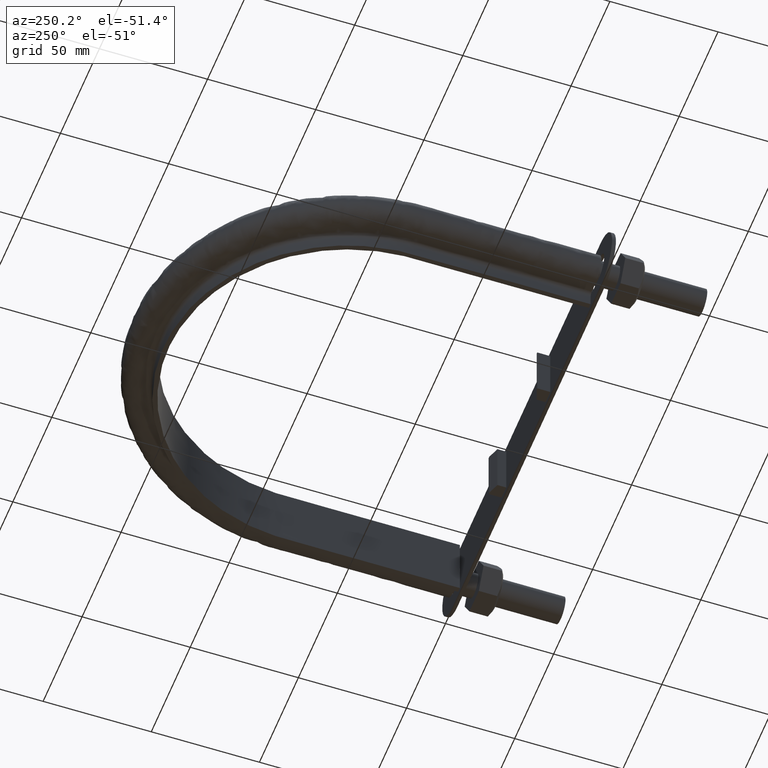
[diagram: clean part render]
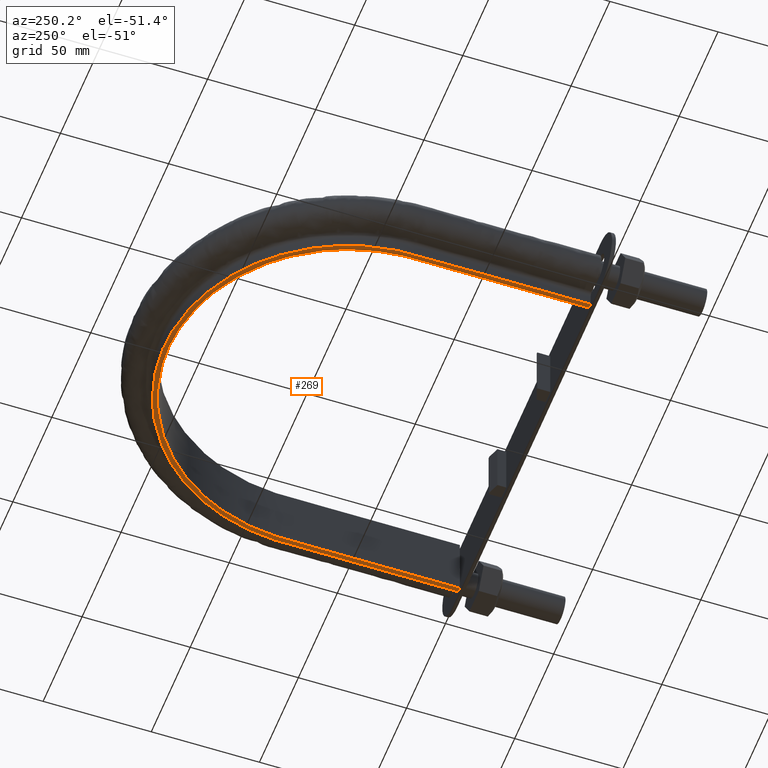
[diagram: same view with one face highlighted and labeled with its STEP entity id]
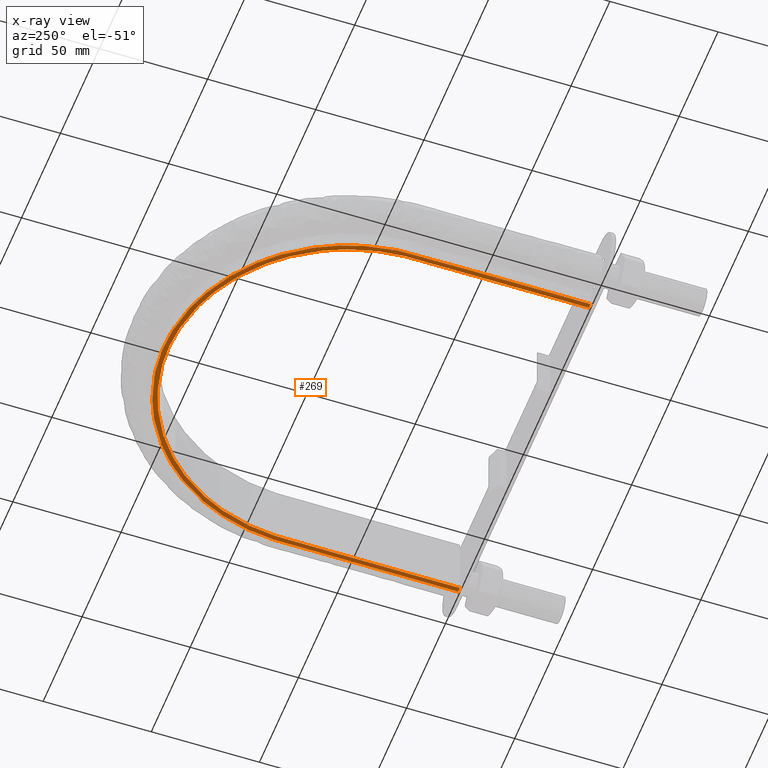
[diagram: x-ray of the same camera — body ghosted, the highlighted face saturated]
A machine part, auxiliary view. The second image highlights one B-rep face of the part: STEP entity #269.
The next image is the same camera in x-ray: the body ghosted, the highlighted face saturated — about 0% of this face is hidden behind the body in this view.
In plain terms, the highlighted planar face has unit normal (0, 0, 1).
Its self-contained STEP definition (entity closure, byte-faithful):
#269 = ADVANCED_FACE( '', ( #348 ), #349, .F. );
#348 = FACE_OUTER_BOUND( '', #532, .T. );
#349 = PLANE( '', #533 );
#532 = EDGE_LOOP( '', ( #1638, #1639, #1640, #1641 ) );
#533 = AXIS2_PLACEMENT_3D( '', #1642, #1643, #1644 );
#1638 = ORIENTED_EDGE( '', *, *, #2173, .F. );
#1639 = ORIENTED_EDGE( '', *, *, #2170, .F. );
#1640 = ORIENTED_EDGE( '', *, *, #2175, .F. );
#1641 = ORIENTED_EDGE( '', *, *, #2176, .F. );
#1642 = CARTESIAN_POINT( '', ( 150.000000000000, 349.500000000000, -15.0000000000000 ) );
#1643 = DIRECTION( '', ( 0.000000000000000, 0.000000000000000, 1.00000000000000 ) );
#1644 = DIRECTION( '', ( 1.00000000000000, 0.000000000000000, 0.000000000000000 ) );
#2170 = EDGE_CURVE( '', #2336, #2331, #2338, .T. );
#2173 = EDGE_CURVE( '', #2331, #2343, #2344, .T. );
#2175 = EDGE_CURVE( '', #2346, #2336, #2347, .T. );
#2176 = EDGE_CURVE( '', #2343, #2346, #2348, .T. );
#2331 = VERTEX_POINT( '', #2617 );
#2336 = VERTEX_POINT( '', #2624 );
#2338 = LINE( '', #2656, #2657 );
#2343 = VERTEX_POINT( '', #2688 );
#2344 = B_SPLINE_CURVE_WITH_KNOTS( '', 3, ( #2689, #2690, #2691, #2692, #2693, #2694, #2695, #2696, #2697, #2698, #2699, #2700, #2701, #2702, #2703, #2704, #2705 ), .UNSPECIFIED., .F., .F., ( 4, 3, 1, 1, 1, 1, 1, 1, 1, 3, 4 ), ( -10.0000000000000, -9.00000000000000, -8.00000000000000, -7.00000000000000, -6.00000000000000, -5.00000000000000, -4.00000000000000, -3.00000000000000, -2.00000000000000, -1.00000000000000, 0.000000000000000 ), .UNSPECIFIED. );
#2346 = VERTEX_POINT( '', #2708 );
#2347 = B_SPLINE_CURVE_WITH_KNOTS( '', 3, ( #2709, #2710, #2711, #2712, #2713, #2714, #2715, #2716, #2717, #2718, #2719, #2720, #2721, #2722, #2723, #2724, #2725 ), .UNSPECIFIED., .F., .F., ( 4, 3, 1, 1, 1, 1, 1, 1, 1, 3, 4 ), ( 0.000000000000000, 1.00000000000000, 2.00000000000000, 3.00000000000000, 4.00000000000000, 5.00000000000000, 6.00000000000000, 7.00000000000000, 8.00000000000000, 9.00000000000000, 10.0000000000000 ), .UNSPECIFIED. );
#2348 = LINE( '', #2726, #2727 );
#2617 = CARTESIAN_POINT( '', ( -82.8499999999999, 49.5000000000003, -15.0000000000000 ) );
#2624 = CARTESIAN_POINT( '', ( -85.0499999999999, 49.5000000000003, -15.0000000000000 ) );
#2656 = CARTESIAN_POINT( '', ( -150.000000000000, 49.5000000000003, -15.0000000000000 ) );
#2657 = VECTOR( '', #3329, 1000.00000000000 );
#2688 = CARTESIAN_POINT( '', ( 82.8500000000000, 49.5000000000000, -15.0000000000000 ) );
#2689 = CARTESIAN_POINT( '', ( -82.8500000000000, 49.5000000000001, -15.0000000000000 ) );
#2690 = CARTESIAN_POINT( '', ( -82.8500000000000, 76.7166666666667, -15.0000000000000 ) );
#2691 = CARTESIAN_POINT( '', ( -82.8500000000000, 103.933333333333, -15.0000000000000 ) );
#2692 = CARTESIAN_POINT( '', ( -82.8500000000000, 131.150000000000, -15.0000000000000 ) );
#2693 = CARTESIAN_POINT( '', ( -82.8500000000000, 141.979512005492, -15.0000000000000 ) );
#2694 = CARTESIAN_POINT( '', ( -78.5361555605724, 163.687272457852, -15.0000000000000 ) );
#2695 = CARTESIAN_POINT( '', ( -60.1089711493570, 191.257212617967, -15.0000000000000 ) );
#2696 = CARTESIAN_POINT( '', ( -32.5307407698323, 209.686657998112, -15.0000000000000 ) );
#2697 = CARTESIAN_POINT( '', ( 5.42262588885138E-014, 216.156671000944, -15.0000000000000 ) );
#2698 = CARTESIAN_POINT( '', ( 32.5307407698323, 209.686657998112, -15.0000000000000 ) );
#2699 = CARTESIAN_POINT( '', ( 60.1089711493571, 191.257212617967, -15.0000000000000 ) );
#2700 = CARTESIAN_POINT( '', ( 78.5361555605725, 163.687272457852, -15.0000000000000 ) );
#2701 = CARTESIAN_POINT( '', ( 82.8500000000000, 141.979512005492, -15.0000000000000 ) );
#2702 = CARTESIAN_POINT( '', ( 82.8500000000000, 131.150000000000, -15.0000000000000 ) );
#2703 = CARTESIAN_POINT( '', ( 82.8500000000000, 103.933333333333, -15.0000000000000 ) );
#2704 = CARTESIAN_POINT( '', ( 82.8500000000000, 76.7166666666667, -15.0000000000000 ) );
#2705 = CARTESIAN_POINT( '', ( 82.8500000000000, 49.5000000000000, -15.0000000000000 ) );
#2708 = CARTESIAN_POINT( '', ( 85.0500000000002, 49.5000000000003, -15.0000000000000 ) );
#2709 = CARTESIAN_POINT( '', ( 85.0500000000000, 49.5000000000000, -15.0000000000000 ) );
#2710 = CARTESIAN_POINT( '', ( 85.0500000000000, 76.7166666666667, -15.0000000000000 ) );
#2711 = CARTESIAN_POINT( '', ( 85.0500000000000, 103.933333333333, -15.0000000000000 ) );
#2712 = CARTESIAN_POINT( '', ( 85.0500000000000, 131.150000000000, -15.0000000000000 ) );
#2713 = CARTESIAN_POINT( '', ( 85.0500000000000, 142.271250144316, -15.0000000000000 ) );
#2714 = CARTESIAN_POINT( '', ( 80.6216056780530, 164.549331025117, -15.0000000000000 ) );
#2715 = CARTESIAN_POINT( '', ( 61.7051055673243, 192.853821731524, -15.0000000000000 ) );
#2716 = CARTESIAN_POINT( '', ( 33.3945624921453, 211.771972488282, -15.0000000000000 ) );
#2717 = CARTESIAN_POINT( '', ( 5.79721414685099E-014, 218.414013755859, -15.0000000000000 ) );
#2718 = CARTESIAN_POINT( '', ( -33.3945624921452, 211.771972488282, -15.0000000000000 ) );
#2719 = CARTESIAN_POINT( '', ( -61.7051055673243, 192.853821731524, -15.0000000000000 ) );
#2720 = CARTESIAN_POINT( '', ( -80.6216056780529, 164.549331025117, -15.0000000000000 ) );
#2721 = CARTESIAN_POINT( '', ( -85.0500000000000, 142.271250144316, -15.0000000000000 ) );
#2722 = CARTESIAN_POINT( '', ( -85.0500000000000, 131.150000000000, -15.0000000000000 ) );
#2723 = CARTESIAN_POINT( '', ( -85.0499999999999, 103.933333333333, -15.0000000000000 ) );
#2724 = CARTESIAN_POINT( '', ( -85.0499999999999, 76.7166666666667, -15.0000000000000 ) );
#2725 = CARTESIAN_POINT( '', ( -85.0500000000000, 49.5000000000001, -15.0000000000000 ) );
#2726 = CARTESIAN_POINT( '', ( -150.000000000000, 49.5000000000003, -15.0000000000000 ) );
#2727 = VECTOR( '', #3331, 1000.00000000000 );
#3329 = DIRECTION( '', ( 1.00000000000000, -1.22460635382238E-016, 0.000000000000000 ) );
#3331 = DIRECTION( '', ( 1.00000000000000, -1.22460635382238E-016, 0.000000000000000 ) );